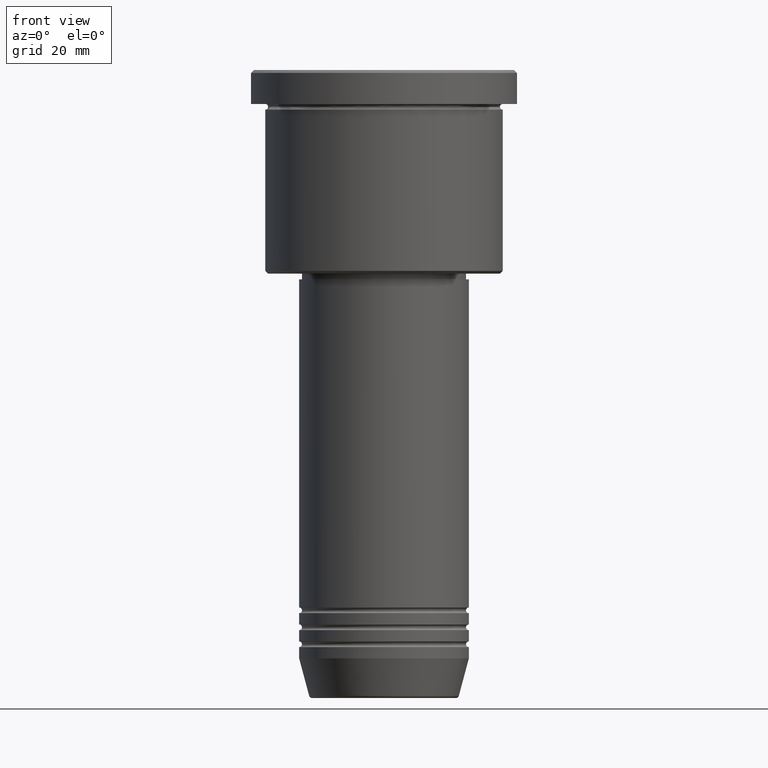
[diagram: clean part render]
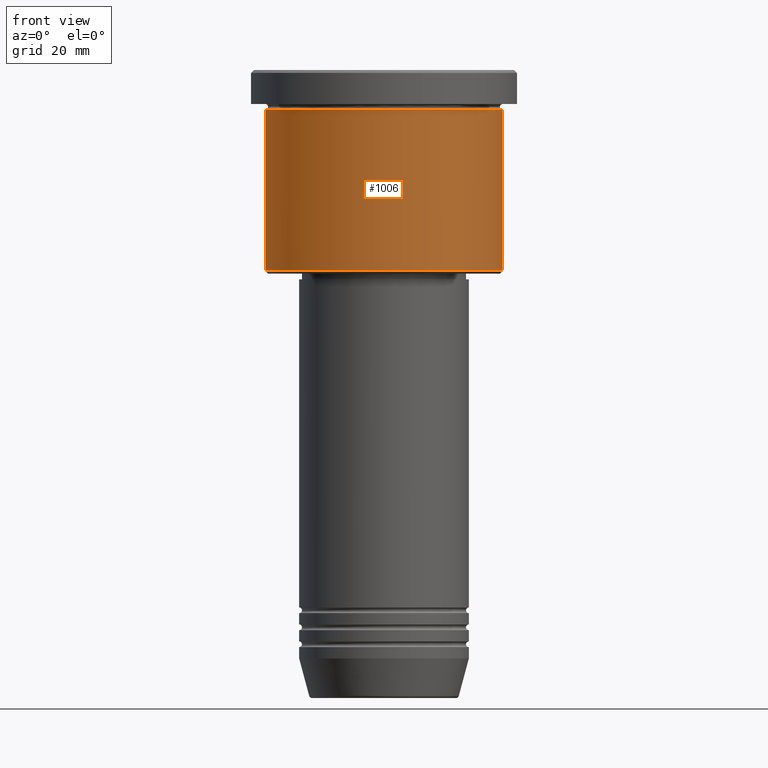
[diagram: same view with one face highlighted and labeled with its STEP entity id]
A machine part, front view. The second image highlights one B-rep face of the part: STEP entity #1006.
In plain terms, the highlighted cylindrical surface (partial cylindrical patch) has radius 21 mm, axis along (-0, -0, 1).
Its self-contained STEP definition (entity closure, byte-faithful):
#8 = CIRCLE ( 'NONE', #159, 21.00000000000000000 ) ;
#11 = CARTESIAN_POINT ( 'NONE',  ( -21.00000000000000000, 2.571758278209441661E-15, -6.999999999999994671 ) ) ;
#64 = VECTOR ( 'NONE', #1081, 1000.000000000000000 ) ;
#75 = EDGE_CURVE ( 'NONE', #1068, #682, #8, .T. ) ;
#81 = DIRECTION ( 'NONE',  ( -0.000000000000000000, -0.000000000000000000, 1.000000000000000000 ) ) ;
#99 = DIRECTION ( 'NONE',  ( 1.000000000000000000, 0.000000000000000000, 0.000000000000000000 ) ) ;
#159 = AXIS2_PLACEMENT_3D ( 'NONE', #256, #162, #975 ) ;
#162 = DIRECTION ( 'NONE',  ( -0.000000000000000000, -0.000000000000000000, 1.000000000000000000 ) ) ;
#173 = LINE ( 'NONE', #784, #959 ) ;
#192 = VERTEX_POINT ( 'NONE', #727 ) ;
#210 = EDGE_CURVE ( 'NONE', #859, #1068, #461, .T. ) ;
#234 = CARTESIAN_POINT ( 'NONE',  ( -21.00000000000000000, 2.571758278209441661E-15, -35.50000000000001421 ) ) ;
#256 = CARTESIAN_POINT ( 'NONE',  ( 0.000000000000000000, 0.000000000000000000, -6.999999999999994671 ) ) ;
#260 = AXIS2_PLACEMENT_3D ( 'NONE', #1178, #81, #99 ) ;
#369 = CARTESIAN_POINT ( 'NONE',  ( -21.00000000000000000, 2.571758278209441661E-15, 0.000000000000000000 ) ) ;
#425 = DIRECTION ( 'NONE',  ( -0.000000000000000000, -0.000000000000000000, 1.000000000000000000 ) ) ;
#445 = EDGE_CURVE ( 'NONE', #859, #192, #1114, .T. ) ;
#461 = LINE ( 'NONE', #369, #64 ) ;
#516 = ORIENTED_EDGE ( 'NONE', *, *, #75, .F. ) ;
#522 = ORIENTED_EDGE ( 'NONE', *, *, #445, .T. ) ;
#523 = CARTESIAN_POINT ( 'NONE',  ( 0.000000000000000000, 0.000000000000000000, -35.50000000000001421 ) ) ;
#623 = ORIENTED_EDGE ( 'NONE', *, *, #210, .F. ) ;
#682 = VERTEX_POINT ( 'NONE', #844 ) ;
#709 = DIRECTION ( 'NONE',  ( -1.000000000000000000, 0.000000000000000000, 0.000000000000000000 ) ) ;
#727 = CARTESIAN_POINT ( 'NONE',  ( 21.00000000000000000, 0.000000000000000000, -35.50000000000001421 ) ) ;
#777 = AXIS2_PLACEMENT_3D ( 'NONE', #523, #425, #709 ) ;
#784 = CARTESIAN_POINT ( 'NONE',  ( 21.00000000000000000, 0.000000000000000000, 0.000000000000000000 ) ) ;
#806 = ORIENTED_EDGE ( 'NONE', *, *, #852, .T. ) ;
#810 = FACE_OUTER_BOUND ( 'NONE', #1074, .T. ) ;
#844 = CARTESIAN_POINT ( 'NONE',  ( 21.00000000000000000, 0.000000000000000000, -6.999999999999994671 ) ) ;
#852 = EDGE_CURVE ( 'NONE', #192, #682, #173, .T. ) ;
#859 = VERTEX_POINT ( 'NONE', #234 ) ;
#959 = VECTOR ( 'NONE', #1032, 1000.000000000000000 ) ;
#975 = DIRECTION ( 'NONE',  ( 1.000000000000000000, 0.000000000000000000, 0.000000000000000000 ) ) ;
#994 = CYLINDRICAL_SURFACE ( 'NONE', #260, 21.00000000000000000 ) ;
#1006 = ADVANCED_FACE ( 'NONE', ( #810 ), #994, .T. ) ;
#1032 = DIRECTION ( 'NONE',  ( -0.000000000000000000, -0.000000000000000000, 1.000000000000000000 ) ) ;
#1068 = VERTEX_POINT ( 'NONE', #11 ) ;
#1074 = EDGE_LOOP ( 'NONE', ( #623, #522, #806, #516 ) ) ;
#1081 = DIRECTION ( 'NONE',  ( -0.000000000000000000, -0.000000000000000000, 1.000000000000000000 ) ) ;
#1114 = CIRCLE ( 'NONE', #777, 21.00000000000000000 ) ;
#1178 = CARTESIAN_POINT ( 'NONE',  ( 0.000000000000000000, 0.000000000000000000, 0.000000000000000000 ) ) ;